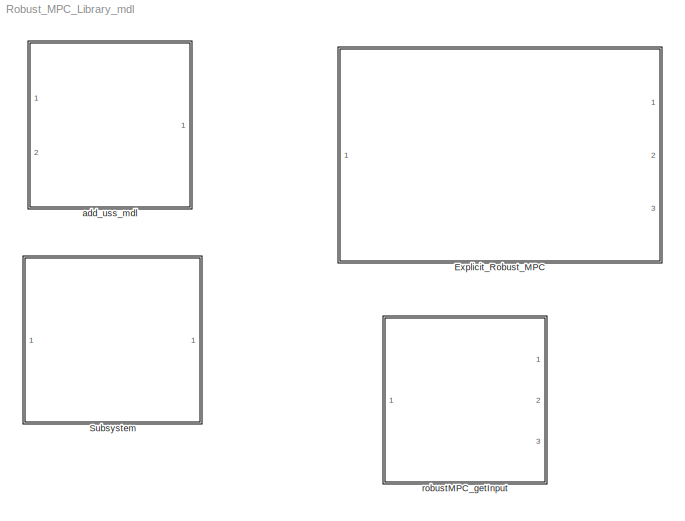
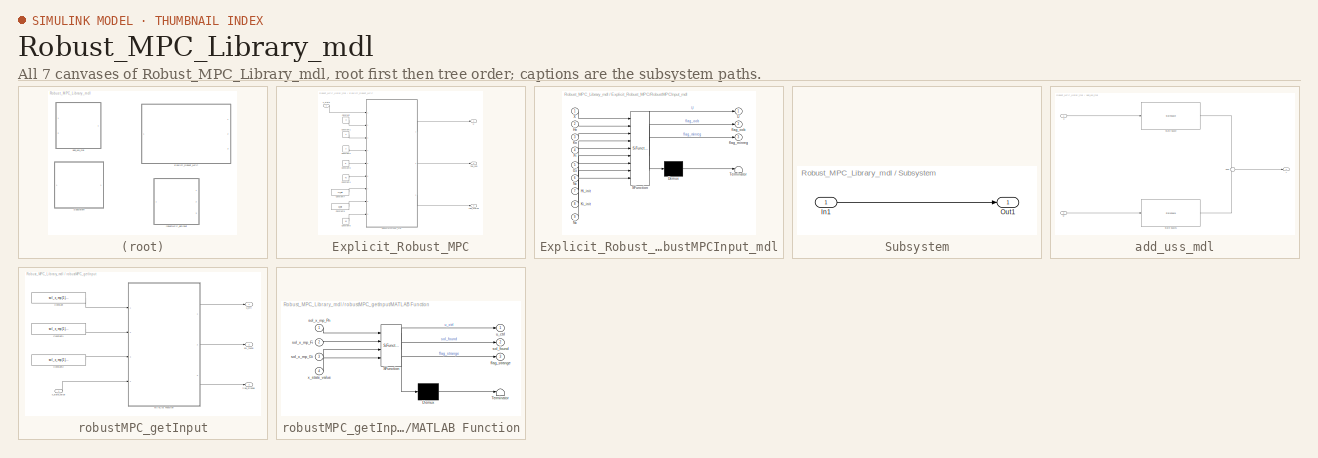
[diagram: thumbnail index - all 7 canvases of the model, root first then tree order]
MODEL Robust_MPC_Library_mdl
KIND library
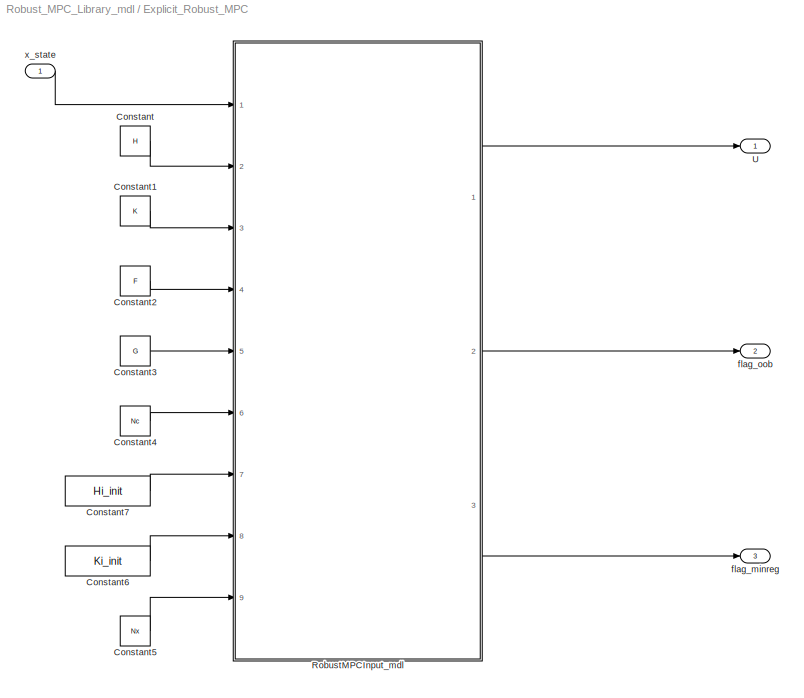
BLOCK [SubSystem] Explicit_Robust_MPC
  FunctionWithSeparateData = off
  MaskHideContents = off
  MinAlgLoopOccurrences = off
  Opaque = off
  Ports = [1, 3]
  PropExecContextOutsideSubsystem = off
  RTWSystemCode = Auto
  RequestExecContextInheritance = off
  SID = 63
BLOCK [Constant] Explicit_Robust_MPC/Constant
  SID = 65
  Value = H
BLOCK [Constant] Explicit_Robust_MPC/Constant1
  SID = 66
  Value = K
BLOCK [Constant] Explicit_Robust_MPC/Constant2
  SID = 67
  Value = F
BLOCK [Constant] Explicit_Robust_MPC/Constant3
  SID = 68
  Value = G
BLOCK [Constant] Explicit_Robust_MPC/Constant4
  SID = 69
  Value = Nc
BLOCK [Constant] Explicit_Robust_MPC/Constant5
  SID = 70
  Value = Nx
BLOCK [Constant] Explicit_Robust_MPC/Constant6
  SID = 78
  Value = Ki_init
BLOCK [Constant] Explicit_Robust_MPC/Constant7
  SID = 71
  Value = Hi_init
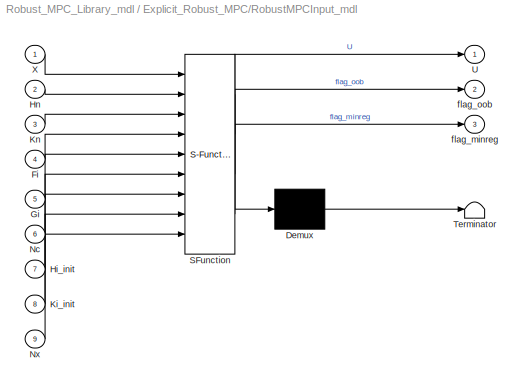
BLOCK [SubSystem] Explicit_Robust_MPC/RobustMPCInput_mdl
  ErrorFcn = Stateflow.Translate.translate
  FunctionWithSeparateData = off
  MaskHideContents = off
  MinAlgLoopOccurrences = off
  Opaque = off
  PermitHierarchicalResolution = ExplicitOnly
  Ports = [9, 3]
  PropExecContextOutsideSubsystem = off
  RTWSystemCode = Auto
  RequestExecContextInheritance = off
  SFBlockType = MATLAB Function
  SID = 72
  TreatAsAtomicUnit = on
BLOCK [Demux] Explicit_Robust_MPC/RobustMPCInput_mdl/ Demux 
  Outputs = 1
  Ports = [1, 1]
  SID = 72::19
BLOCK [S-Function] Explicit_Robust_MPC/RobustMPCInput_mdl/ SFunction 
  EnableBusSupport = on
  FunctionName = sf_sfun
  PortCounts = [9 4]
  Ports = [9, 4]
  SID = 72::18
  Tag = Stateflow S-Function Robust_MPC_Library_mdl 1
BLOCK [Terminator] Explicit_Robust_MPC/RobustMPCInput_mdl/ Terminator 
  SID = 72::20
BLOCK [Inport] Explicit_Robust_MPC/RobustMPCInput_mdl/Fi
  IconDisplay = Port number
  Port = 4
  SID = 72::23
BLOCK [Inport] Explicit_Robust_MPC/RobustMPCInput_mdl/Gi
  IconDisplay = Port number
  Port = 5
  SID = 72::24
BLOCK [Inport] Explicit_Robust_MPC/RobustMPCInput_mdl/Hi_init
  IconDisplay = Port number
  Port = 7
  SID = 72::28
BLOCK [Inport] Explicit_Robust_MPC/RobustMPCInput_mdl/Hn
  IconDisplay = Port number
  Port = 2
  SID = 72::21
BLOCK [Inport] Explicit_Robust_MPC/RobustMPCInput_mdl/Ki_init
  IconDisplay = Port number
  Port = 8
  SID = 72::139
BLOCK [Inport] Explicit_Robust_MPC/RobustMPCInput_mdl/Kn
  IconDisplay = Port number
  Port = 3
  SID = 72::22
BLOCK [Inport] Explicit_Robust_MPC/RobustMPCInput_mdl/Nc
  IconDisplay = Port number
  Port = 6
  SID = 72::25
BLOCK [Inport] Explicit_Robust_MPC/RobustMPCInput_mdl/Nx
  IconDisplay = Port number
  Port = 9
  SID = 72::26
BLOCK [Outport] Explicit_Robust_MPC/RobustMPCInput_mdl/U
  IconDisplay = Port number
  SID = 72::5
BLOCK [Inport] Explicit_Robust_MPC/RobustMPCInput_mdl/X
  IconDisplay = Port number
  SID = 72::1
BLOCK [Outport] Explicit_Robust_MPC/RobustMPCInput_mdl/flag_minreg
  IconDisplay = Port number
  Port = 3
  SID = 72::154
BLOCK [Outport] Explicit_Robust_MPC/RobustMPCInput_mdl/flag_oob
  IconDisplay = Port number
  Port = 2
  SID = 72::27
BLOCK [Outport] Explicit_Robust_MPC/U
  IconDisplay = Port number
  SID = 73
BLOCK [Outport] Explicit_Robust_MPC/flag_minreg
  IconDisplay = Port number
  Port = 3
  SID = 79
BLOCK [Outport] Explicit_Robust_MPC/flag_oob
  IconDisplay = Port number
  Port = 2
  SID = 74
BLOCK [Inport] Explicit_Robust_MPC/x_state
  IconDisplay = Port number
  SID = 64
BLOCK [SubSystem] Subsystem
  FunctionWithSeparateData = off
  MaskHideContents = off
  MinAlgLoopOccurrences = off
  Opaque = off
  Ports = [1, 1]
  PropExecContextOutsideSubsystem = off
  RTWSystemCode = Auto
  RequestExecContextInheritance = off
  SID = 44
BLOCK [Inport] Subsystem/In1
  IconDisplay = Port number
  SID = 45
BLOCK [Outport] Subsystem/Out1
  IconDisplay = Port number
  SID = 46
BLOCK [SubSystem] add_uss_mdl
  FunctionWithSeparateData = off
  MaskHideContents = off
  MinAlgLoopOccurrences = off
  Opaque = off
  Ports = [2, 1]
  PropExecContextOutsideSubsystem = off
  RTWSystemCode = Auto
  RequestExecContextInheritance = off
  SID = 28
BLOCK [StateSpace] add_uss_mdl/State-Space
  A = add_usys_d_struct.continuous.matrices.A
  B = add_usys_d_struct.continuous.matrices.B
  C = add_usys_d_struct.continuous.matrices.C
  D = add_usys_d_struct.continuous.matrices.D
  SID = 31
BLOCK [StateSpace] add_uss_mdl/State-Space1
  A = add_usys_d_struct.continuous.matrices.A
  B = add_usys_d_struct.continuous.matrices.E
  C = add_usys_d_struct.continuous.matrices.C
  D = add_usys_d_struct.continuous.matrices.D
  SID = 32
BLOCK [Sum] add_uss_mdl/Sum
  IconShape = round
  InputSameDT = off
  Inputs = +|+
  OutDataTypeStr = Inherit: Inherit via internal rule
  Ports = [2, 1]
  SID = 33
  SaturateOnIntegerOverflow = off
BLOCK [Inport] add_uss_mdl/u
  IconDisplay = Port number
  SID = 29
BLOCK [Inport] add_uss_mdl/w
  IconDisplay = Port number
  Port = 2
  SID = 30
BLOCK [Outport] add_uss_mdl/y
  IconDisplay = Port number
  SID = 34
BLOCK [SubSystem] robustMPC_getInput
  FunctionWithSeparateData = off
  MaskHideContents = off
  MinAlgLoopOccurrences = off
  Opaque = off
  Ports = [1, 3]
  PropExecContextOutsideSubsystem = off
  RTWSystemCode = Auto
  RequestExecContextInheritance = off
  SID = 35
BLOCK [Constant] robustMPC_getInput/Constant
  SID = 37
  Value = sol_x_mp{1}.Pn
BLOCK [Constant] robustMPC_getInput/Constant1
  SID = 38
  Value = sol_x_mp{1}.Fi
BLOCK [Constant] robustMPC_getInput/Constant2
  SID = 39
  Value = sol_x_mp{1}.Gi
BLOCK [SubSystem] robustMPC_getInput/MATLAB Function
  ErrorFcn = Stateflow.Translate.translate
  FunctionWithSeparateData = off
  MaskHideContents = off
  MinAlgLoopOccurrences = off
  Opaque = off
  PermitHierarchicalResolution = ExplicitOnly
  Ports = [4, 3]
  PropExecContextOutsideSubsystem = off
  RTWSystemCode = Auto
  RequestExecContextInheritance = off
  SFBlockType = MATLAB Function
  SID = 40
  TreatAsAtomicUnit = on
BLOCK [Demux] robustMPC_getInput/MATLAB Function/ Demux 
  Outputs = 1
  Ports = [1, 1]
  SID = 40::19
BLOCK [S-Function] robustMPC_getInput/MATLAB Function/ SFunction 
  EnableBusSupport = off
  FunctionName = sf_sfun
  PortCounts = [4 4]
  Ports = [4, 4]
  SID = 40::18
  Tag = Stateflow S-Function Robust_MPC_Library_mdl 2
BLOCK [Terminator] robustMPC_getInput/MATLAB Function/ Terminator 
  SID = 40::20
BLOCK [Outport] robustMPC_getInput/MATLAB Function/flag_strange
  IconDisplay = Port number
  Port = 3
  SID = 40::23
BLOCK [Outport] robustMPC_getInput/MATLAB Function/sol_found
  IconDisplay = Port number
  Port = 2
  SID = 40::22
BLOCK [Inport] robustMPC_getInput/MATLAB Function/sol_x_mp_Fi
  IconDisplay = Port number
  Port = 2
  SID = 40::24
BLOCK [Inport] robustMPC_getInput/MATLAB Function/sol_x_mp_Gi
  IconDisplay = Port number
  Port = 3
  SID = 40::25
BLOCK [Inport] robustMPC_getInput/MATLAB Function/sol_x_mp_Pn
  IconDisplay = Port number
  SID = 40::1
BLOCK [Outport] robustMPC_getInput/MATLAB Function/u_ctrl
  IconDisplay = Port number
  SID = 40::5
BLOCK [Inport] robustMPC_getInput/MATLAB Function/x_state_value
  IconDisplay = Port number
  Port = 4
  SID = 40::21
BLOCK [Outport] robustMPC_getInput/flag_strange
  IconDisplay = Port number
  Port = 3
  SID = 43
BLOCK [Outport] robustMPC_getInput/sol_found
  IconDisplay = Port number
  Port = 2
  SID = 42
BLOCK [Outport] robustMPC_getInput/u_ctrl
  IconDisplay = Port number
  SID = 41
BLOCK [Inport] robustMPC_getInput/x_state_value
  IconDisplay = Port number
  SID = 36
LINE Explicit_Robust_MPC/Constant1:1 -> Explicit_Robust_MPC/RobustMPCInput_mdl:3
LINE Explicit_Robust_MPC/Constant2:1 -> Explicit_Robust_MPC/RobustMPCInput_mdl:4
LINE Explicit_Robust_MPC/Constant3:1 -> Explicit_Robust_MPC/RobustMPCInput_mdl:5
LINE Explicit_Robust_MPC/Constant4:1 -> Explicit_Robust_MPC/RobustMPCInput_mdl:6
LINE Explicit_Robust_MPC/Constant5:1 -> Explicit_Robust_MPC/RobustMPCInput_mdl:9
LINE Explicit_Robust_MPC/Constant6:1 -> Explicit_Robust_MPC/RobustMPCInput_mdl:8
LINE Explicit_Robust_MPC/Constant7:1 -> Explicit_Robust_MPC/RobustMPCInput_mdl:7
LINE Explicit_Robust_MPC/Constant:1 -> Explicit_Robust_MPC/RobustMPCInput_mdl:2
LINE Explicit_Robust_MPC/RobustMPCInput_mdl/ Demux :1 -> Explicit_Robust_MPC/RobustMPCInput_mdl/ Terminator :1
LINE Explicit_Robust_MPC/RobustMPCInput_mdl/ SFunction :1 -> Explicit_Robust_MPC/RobustMPCInput_mdl/ Demux :1
LINE Explicit_Robust_MPC/RobustMPCInput_mdl/ SFunction :2 -> Explicit_Robust_MPC/RobustMPCInput_mdl/U:1
LINE Explicit_Robust_MPC/RobustMPCInput_mdl/ SFunction :3 -> Explicit_Robust_MPC/RobustMPCInput_mdl/flag_oob:1
LINE Explicit_Robust_MPC/RobustMPCInput_mdl/ SFunction :4 -> Explicit_Robust_MPC/RobustMPCInput_mdl/flag_minreg:1
LINE Explicit_Robust_MPC/RobustMPCInput_mdl/Fi:1 -> Explicit_Robust_MPC/RobustMPCInput_mdl/ SFunction :4
LINE Explicit_Robust_MPC/RobustMPCInput_mdl/Gi:1 -> Explicit_Robust_MPC/RobustMPCInput_mdl/ SFunction :5
LINE Explicit_Robust_MPC/RobustMPCInput_mdl/Hi_init:1 -> Explicit_Robust_MPC/RobustMPCInput_mdl/ SFunction :7
LINE Explicit_Robust_MPC/RobustMPCInput_mdl/Hn:1 -> Explicit_Robust_MPC/RobustMPCInput_mdl/ SFunction :2
LINE Explicit_Robust_MPC/RobustMPCInput_mdl/Ki_init:1 -> Explicit_Robust_MPC/RobustMPCInput_mdl/ SFunction :8
LINE Explicit_Robust_MPC/RobustMPCInput_mdl/Kn:1 -> Explicit_Robust_MPC/RobustMPCInput_mdl/ SFunction :3
LINE Explicit_Robust_MPC/RobustMPCInput_mdl/Nc:1 -> Explicit_Robust_MPC/RobustMPCInput_mdl/ SFunction :6
LINE Explicit_Robust_MPC/RobustMPCInput_mdl/Nx:1 -> Explicit_Robust_MPC/RobustMPCInput_mdl/ SFunction :9
LINE Explicit_Robust_MPC/RobustMPCInput_mdl/X:1 -> Explicit_Robust_MPC/RobustMPCInput_mdl/ SFunction :1
LINE Explicit_Robust_MPC/RobustMPCInput_mdl:1 -> Explicit_Robust_MPC/U:1
LINE Explicit_Robust_MPC/RobustMPCInput_mdl:2 -> Explicit_Robust_MPC/flag_oob:1
LINE Explicit_Robust_MPC/RobustMPCInput_mdl:3 -> Explicit_Robust_MPC/flag_minreg:1
LINE Explicit_Robust_MPC/x_state:1 -> Explicit_Robust_MPC/RobustMPCInput_mdl:1
LINE Subsystem/In1:1 -> Subsystem/Out1:1
LINE add_uss_mdl/State-Space1:1 -> add_uss_mdl/Sum:2
LINE add_uss_mdl/State-Space:1 -> add_uss_mdl/Sum:1
LINE add_uss_mdl/Sum:1 -> add_uss_mdl/y:1
LINE add_uss_mdl/u:1 -> add_uss_mdl/State-Space:1
LINE add_uss_mdl/w:1 -> add_uss_mdl/State-Space1:1
LINE robustMPC_getInput/Constant1:1 -> robustMPC_getInput/MATLAB Function:2
LINE robustMPC_getInput/Constant2:1 -> robustMPC_getInput/MATLAB Function:3
LINE robustMPC_getInput/Constant:1 -> robustMPC_getInput/MATLAB Function:1
LINE robustMPC_getInput/MATLAB Function/ Demux :1 -> robustMPC_getInput/MATLAB Function/ Terminator :1
LINE robustMPC_getInput/MATLAB Function/ SFunction :1 -> robustMPC_getInput/MATLAB Function/ Demux :1
LINE robustMPC_getInput/MATLAB Function/ SFunction :2 -> robustMPC_getInput/MATLAB Function/u_ctrl:1
LINE robustMPC_getInput/MATLAB Function/ SFunction :3 -> robustMPC_getInput/MATLAB Function/sol_found:1
LINE robustMPC_getInput/MATLAB Function/ SFunction :4 -> robustMPC_getInput/MATLAB Function/flag_strange:1
LINE robustMPC_getInput/MATLAB Function/sol_x_mp_Fi:1 -> robustMPC_getInput/MATLAB Function/ SFunction :2
LINE robustMPC_getInput/MATLAB Function/sol_x_mp_Gi:1 -> robustMPC_getInput/MATLAB Function/ SFunction :3
LINE robustMPC_getInput/MATLAB Function/sol_x_mp_Pn:1 -> robustMPC_getInput/MATLAB Function/ SFunction :1
LINE robustMPC_getInput/MATLAB Function/x_state_value:1 -> robustMPC_getInput/MATLAB Function/ SFunction :4
LINE robustMPC_getInput/MATLAB Function:1 -> robustMPC_getInput/u_ctrl:1
LINE robustMPC_getInput/MATLAB Function:2 -> robustMPC_getInput/sol_found:1
LINE robustMPC_getInput/MATLAB Function:3 -> robustMPC_getInput/flag_strange:1
LINE robustMPC_getInput/x_state_value:1 -> robustMPC_getInput/MATLAB Function:4
CHART Explicit_Robust_MPC/RobustMPCInput_mdl states=1 transitions=1
  STATE_LABEL 'eML_blk_kernel()'
CHART robustMPC_getInput/MATLAB Function states=1 transitions=1
  STATE_LABEL 'eML_blk_kernel()'
